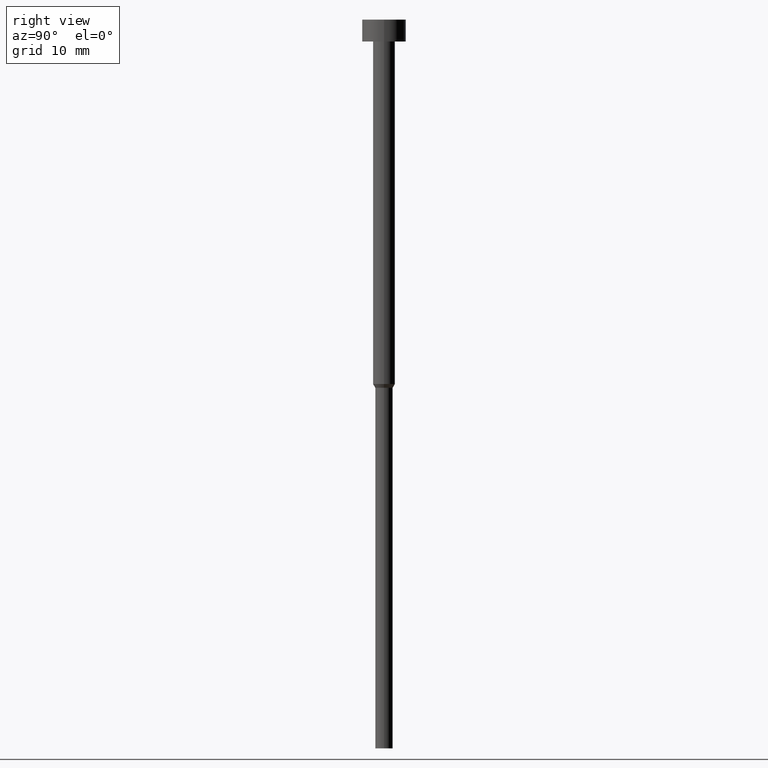
[diagram: clean part render]
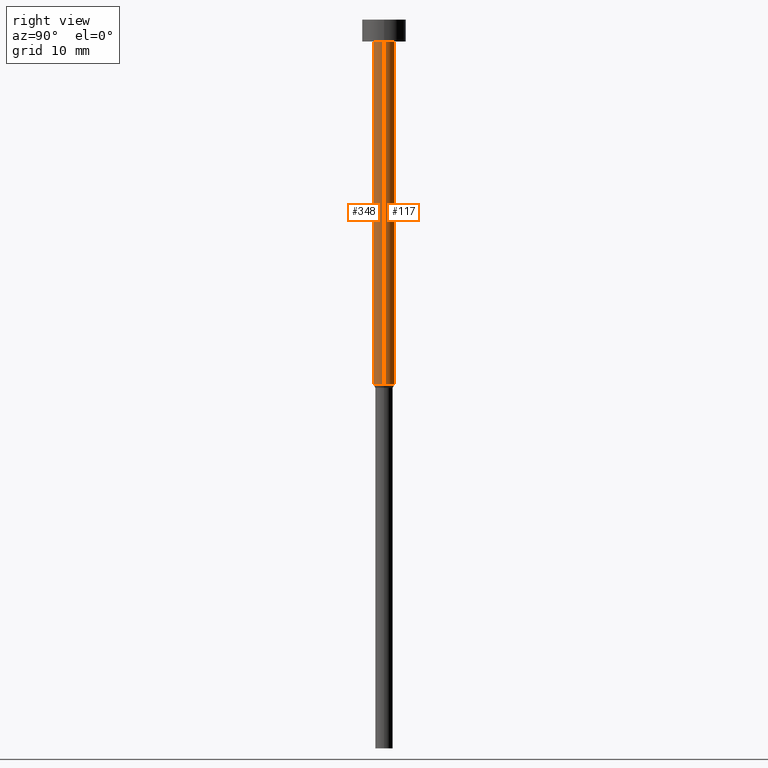
[diagram: same view with one multi-face feature highlighted, each face labeled with its STEP entity id]
A machine part, right view. The highlighted faces form ONE feature: a constant-radius fillet chain: 2 tangent blend faces with common blend radius 1.5 mm. The faces share edges in the B-rep.
Their STEP definitions:
[1] entity #348 (Cylinder):
#11 = ORIENTED_EDGE ( 'NONE', *, *, #139, .T. ) ;
#15 = EDGE_CURVE ( 'NONE', #96, #291, #123, .T. ) ;
#18 = CARTESIAN_POINT ( 'NONE',  ( -1.500000000000000000, 1.836970198721029934E-16, -3.000000000000000888 ) ) ;
#27 = DIRECTION ( 'NONE',  ( 1.000000000000000000, 0.000000000000000000, 0.000000000000000000 ) ) ;
#35 = AXIS2_PLACEMENT_3D ( 'NONE', #130, #276, #127 ) ;
#62 = VERTEX_POINT ( 'NONE', #186 ) ;
#66 = CARTESIAN_POINT ( 'NONE',  ( 1.500000000000000000, 0.000000000000000000, -3.000000000000000888 ) ) ;
#85 = DIRECTION ( 'NONE',  ( 1.000000000000000000, 0.000000000000000000, 0.000000000000000000 ) ) ;
#90 = VECTOR ( 'NONE', #333, 1000.000000000000000 ) ;
#96 = VERTEX_POINT ( 'NONE', #18 ) ;
#104 = CARTESIAN_POINT ( 'NONE',  ( 1.500000000000000000, 0.000000000000000000, 0.000000000000000000 ) ) ;
#123 = CIRCLE ( 'NONE', #332, 1.500000000000000000 ) ;
#124 = ORIENTED_EDGE ( 'NONE', *, *, #15, .F. ) ;
#127 = DIRECTION ( 'NONE',  ( 1.000000000000000000, 0.000000000000000000, 0.000000000000000000 ) ) ;
#130 = CARTESIAN_POINT ( 'NONE',  ( 0.000000000000000000, 0.000000000000000000, 0.000000000000000000 ) ) ;
#134 = ORIENTED_EDGE ( 'NONE', *, *, #184, .F. ) ;
#139 = EDGE_CURVE ( 'NONE', #62, #291, #245, .T. ) ;
#145 = EDGE_LOOP ( 'NONE', ( #134, #229, #11, #124 ) ) ;
#155 = LINE ( 'NONE', #301, #232 ) ;
#184 = EDGE_CURVE ( 'NONE', #243, #96, #155, .T. ) ;
#186 = CARTESIAN_POINT ( 'NONE',  ( 1.500000000000000000, 0.000000000000000000, -50.00000000000000000 ) ) ;
#199 = FACE_OUTER_BOUND ( 'NONE', #145, .T. ) ;
#215 = DIRECTION ( 'NONE',  ( -0.000000000000000000, -0.000000000000000000, 1.000000000000000000 ) ) ;
#229 = ORIENTED_EDGE ( 'NONE', *, *, #355, .T. ) ;
#232 = VECTOR ( 'NONE', #247, 1000.000000000000000 ) ;
#243 = VERTEX_POINT ( 'NONE', #308 ) ;
#245 = LINE ( 'NONE', #104, #90 ) ;
#247 = DIRECTION ( 'NONE',  ( -0.000000000000000000, -0.000000000000000000, 1.000000000000000000 ) ) ;
#248 = CARTESIAN_POINT ( 'NONE',  ( 0.000000000000000000, 0.000000000000000000, -50.00000000000000000 ) ) ;
#276 = DIRECTION ( 'NONE',  ( -0.000000000000000000, -0.000000000000000000, 1.000000000000000000 ) ) ;
#291 = VERTEX_POINT ( 'NONE', #66 ) ;
#292 = CARTESIAN_POINT ( 'NONE',  ( 0.000000000000000000, 0.000000000000000000, -3.000000000000000888 ) ) ;
#301 = CARTESIAN_POINT ( 'NONE',  ( -1.500000000000000000, 1.836970198721029934E-16, 0.000000000000000000 ) ) ;
#308 = CARTESIAN_POINT ( 'NONE',  ( -1.500000000000000000, 1.836970198721029934E-16, -50.00000000000000000 ) ) ;
#318 = DIRECTION ( 'NONE',  ( -0.000000000000000000, -0.000000000000000000, 1.000000000000000000 ) ) ;
#319 = CIRCLE ( 'NONE', #336, 1.500000000000000000 ) ;
#332 = AXIS2_PLACEMENT_3D ( 'NONE', #292, #318, #27 ) ;
#333 = DIRECTION ( 'NONE',  ( -0.000000000000000000, -0.000000000000000000, 1.000000000000000000 ) ) ;
#336 = AXIS2_PLACEMENT_3D ( 'NONE', #248, #215, #85 ) ;
#344 = CYLINDRICAL_SURFACE ( 'NONE', #35, 1.500000000000000000 ) ;
#348 = ADVANCED_FACE ( 'NONE', ( #199 ), #344, .T. ) ;
#355 = EDGE_CURVE ( 'NONE', #243, #62, #319, .T. ) ;
[2] entity #117 (Cylinder):
#17 = CYLINDRICAL_SURFACE ( 'NONE', #342, 1.500000000000000000 ) ;
#18 = CARTESIAN_POINT ( 'NONE',  ( -1.500000000000000000, 1.836970198721029934E-16, -3.000000000000000888 ) ) ;
#31 = EDGE_LOOP ( 'NONE', ( #297, #303, #120, #256 ) ) ;
#62 = VERTEX_POINT ( 'NONE', #186 ) ;
#66 = CARTESIAN_POINT ( 'NONE',  ( 1.500000000000000000, 0.000000000000000000, -3.000000000000000888 ) ) ;
#77 = CIRCLE ( 'NONE', #281, 1.500000000000000000 ) ;
#79 = DIRECTION ( 'NONE',  ( 1.000000000000000000, 0.000000000000000000, 0.000000000000000000 ) ) ;
#81 = DIRECTION ( 'NONE',  ( -0.000000000000000000, -0.000000000000000000, 1.000000000000000000 ) ) ;
#90 = VECTOR ( 'NONE', #333, 1000.000000000000000 ) ;
#96 = VERTEX_POINT ( 'NONE', #18 ) ;
#102 = AXIS2_PLACEMENT_3D ( 'NONE', #228, #340, #210 ) ;
#104 = CARTESIAN_POINT ( 'NONE',  ( 1.500000000000000000, 0.000000000000000000, 0.000000000000000000 ) ) ;
#117 = ADVANCED_FACE ( 'NONE', ( #179 ), #17, .T. ) ;
#120 = ORIENTED_EDGE ( 'NONE', *, *, #309, .F. ) ;
#139 = EDGE_CURVE ( 'NONE', #62, #291, #245, .T. ) ;
#155 = LINE ( 'NONE', #301, #232 ) ;
#179 = FACE_OUTER_BOUND ( 'NONE', #31, .T. ) ;
#184 = EDGE_CURVE ( 'NONE', #243, #96, #155, .T. ) ;
#186 = CARTESIAN_POINT ( 'NONE',  ( 1.500000000000000000, 0.000000000000000000, -50.00000000000000000 ) ) ;
#209 = DIRECTION ( 'NONE',  ( -0.000000000000000000, -0.000000000000000000, 1.000000000000000000 ) ) ;
#210 = DIRECTION ( 'NONE',  ( 1.000000000000000000, 0.000000000000000000, 0.000000000000000000 ) ) ;
#225 = EDGE_CURVE ( 'NONE', #62, #243, #77, .T. ) ;
#228 = CARTESIAN_POINT ( 'NONE',  ( 0.000000000000000000, 0.000000000000000000, -3.000000000000000888 ) ) ;
#232 = VECTOR ( 'NONE', #247, 1000.000000000000000 ) ;
#241 = CIRCLE ( 'NONE', #102, 1.500000000000000000 ) ;
#243 = VERTEX_POINT ( 'NONE', #308 ) ;
#245 = LINE ( 'NONE', #104, #90 ) ;
#247 = DIRECTION ( 'NONE',  ( -0.000000000000000000, -0.000000000000000000, 1.000000000000000000 ) ) ;
#256 = ORIENTED_EDGE ( 'NONE', *, *, #139, .F. ) ;
#258 = CARTESIAN_POINT ( 'NONE',  ( 0.000000000000000000, 0.000000000000000000, -50.00000000000000000 ) ) ;
#281 = AXIS2_PLACEMENT_3D ( 'NONE', #258, #81, #306 ) ;
#291 = VERTEX_POINT ( 'NONE', #66 ) ;
#297 = ORIENTED_EDGE ( 'NONE', *, *, #225, .T. ) ;
#301 = CARTESIAN_POINT ( 'NONE',  ( -1.500000000000000000, 1.836970198721029934E-16, 0.000000000000000000 ) ) ;
#303 = ORIENTED_EDGE ( 'NONE', *, *, #184, .T. ) ;
#306 = DIRECTION ( 'NONE',  ( 1.000000000000000000, 0.000000000000000000, 0.000000000000000000 ) ) ;
#308 = CARTESIAN_POINT ( 'NONE',  ( -1.500000000000000000, 1.836970198721029934E-16, -50.00000000000000000 ) ) ;
#309 = EDGE_CURVE ( 'NONE', #291, #96, #241, .T. ) ;
#316 = CARTESIAN_POINT ( 'NONE',  ( 0.000000000000000000, 0.000000000000000000, 0.000000000000000000 ) ) ;
#333 = DIRECTION ( 'NONE',  ( -0.000000000000000000, -0.000000000000000000, 1.000000000000000000 ) ) ;
#340 = DIRECTION ( 'NONE',  ( -0.000000000000000000, -0.000000000000000000, 1.000000000000000000 ) ) ;
#342 = AXIS2_PLACEMENT_3D ( 'NONE', #316, #209, #79 ) ;